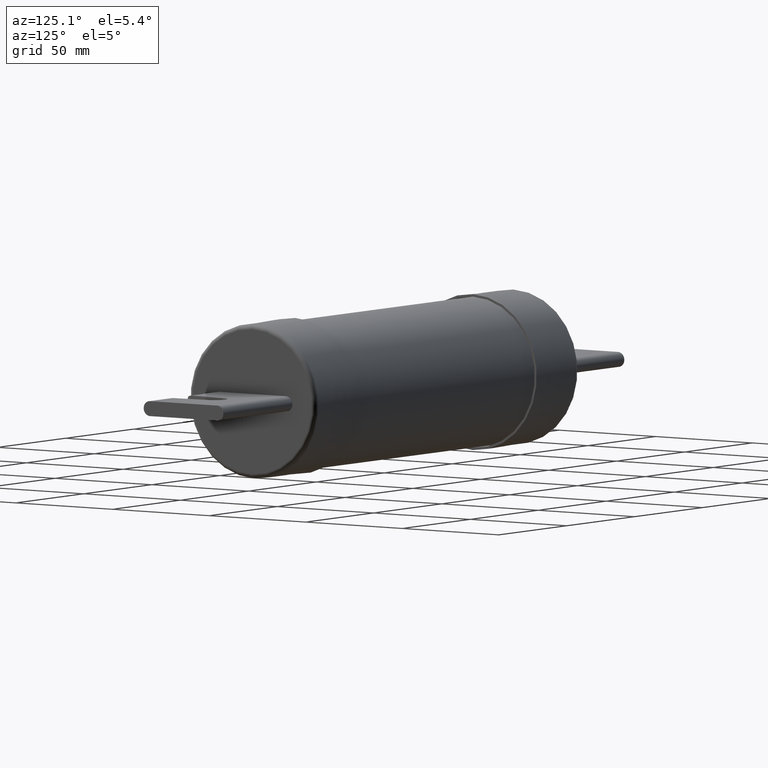
[diagram: clean part render]
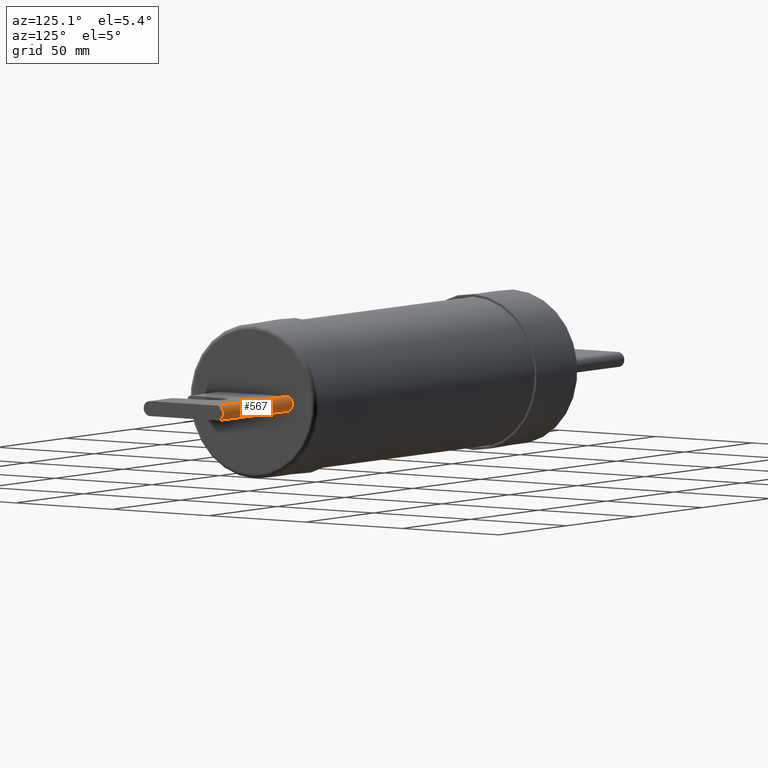
[diagram: same view with one face highlighted and labeled with its STEP entity id]
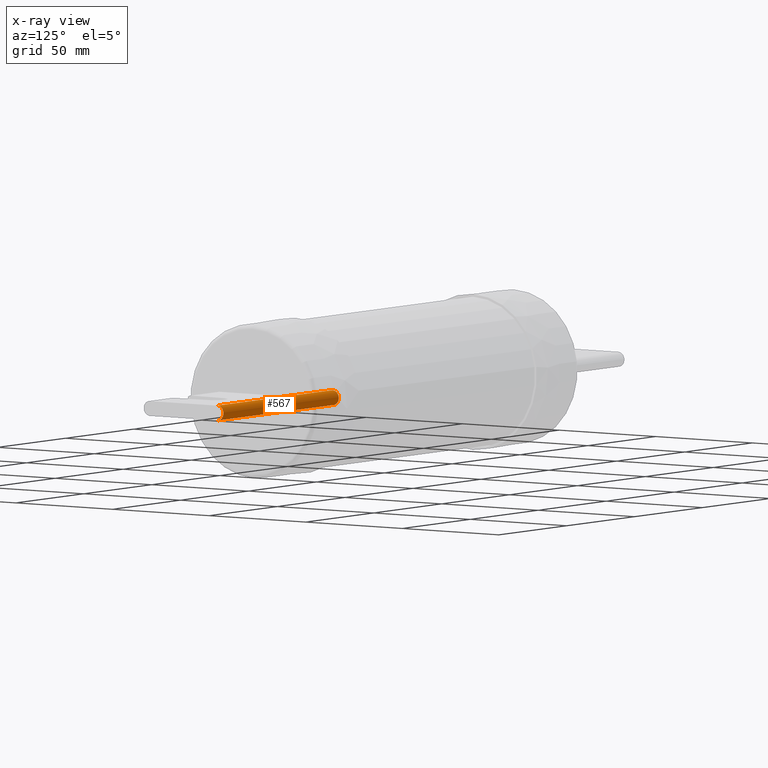
[diagram: x-ray of the same camera — body ghosted, the highlighted face saturated]
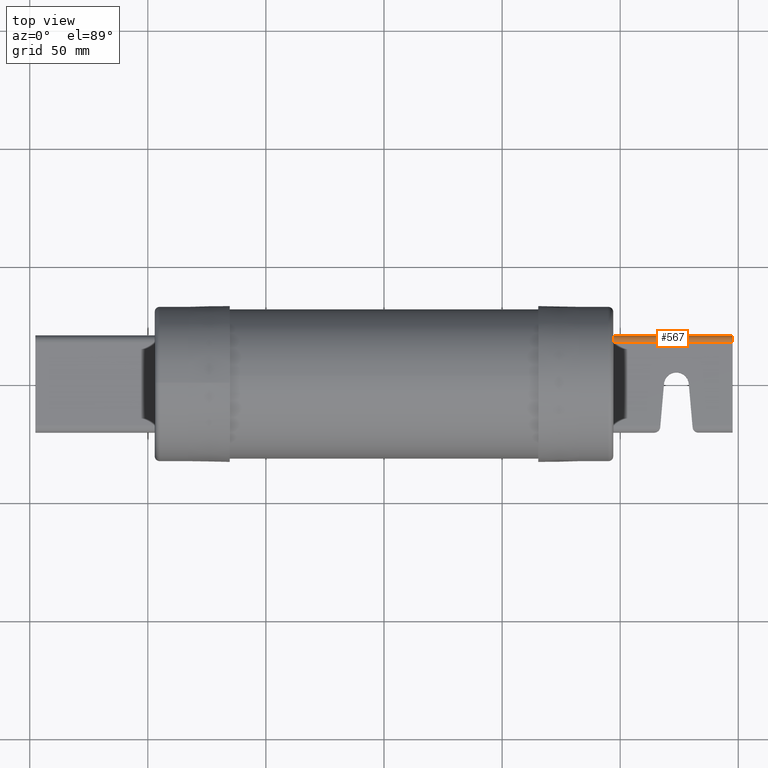
[diagram: same view with one face highlighted and labeled with its STEP entity id]
A machine part, auxiliary view. The second image highlights one B-rep face of the part: STEP entity #567.
The next image is the same camera in x-ray: the body ghosted, the highlighted face saturated — about 0% of this face is hidden behind the body in this view.
A second angle (top view) of the same face is appended — the face is thin or edge-on in the first view.
In plain terms, the highlighted cylindrical surface (edge-blend (fillet) strip) has radius 3.175 mm, axis along (1, 0.0002, -0).
Its self-contained STEP definition (entity closure, byte-faithful):
#104 = DIRECTION ( 'NONE',  ( -0.0001632919660380538900, 0.9999999866678668200, 1.201107293654489000E-016 ) ) ;
#159 = EDGE_CURVE ( 'NONE', #493, #902, #983, .T. ) ;
#197 = CARTESIAN_POINT ( 'NONE',  ( 2.467887663046654600, 0.6879029953996683700, -0.1250000000000002800 ) ) ;
#363 = CARTESIAN_POINT ( 'NONE',  ( 4.139887640755327800, 0.6881760195668792400, 0.1249999999999996800 ) ) ;
#426 = CARTESIAN_POINT ( 'NONE',  ( 5.811887618464001400, 0.6884490437340899900, -0.1250000000000003600 ) ) ;
#462 = DIRECTION ( 'NONE',  ( 0.9999999866678668200, 0.0001632919660351004400, -2.389582637029530700E-017 ) ) ;
#493 = VERTEX_POINT ( 'NONE', #2766 ) ;
#567 = ADVANCED_FACE ( 'NONE', ( #1205 ), #4195, .T. ) ;
#642 = EDGE_CURVE ( 'NONE', #902, #1938, #832, .T. ) ;
#718 = DIRECTION ( 'NONE',  ( -0.9999999866678668200, -0.0001632919660351868500, 2.389582637029529500E-017 ) ) ;
#769 = ORIENTED_EDGE ( 'NONE', *, *, #159, .F. ) ;
#802 = CIRCLE ( 'NONE', #1664, 0.1249999999999999300 ) ;
#832 = CIRCLE ( 'NONE', #1279, 0.1250000000000000000 ) ;
#891 = AXIS2_PLACEMENT_3D ( 'NONE', #3108, #2478, #1521 ) ;
#902 = VERTEX_POINT ( 'NONE', #991 ) ;
#983 = LINE ( 'NONE', #363, #3272 ) ;
#991 = CARTESIAN_POINT ( 'NONE',  ( 2.467887663046654600, 0.6879029953996683700, 0.1249999999999997100 ) ) ;
#1123 = VECTOR ( 'NONE', #2915, 39.37007874015748100 ) ;
#1205 = FACE_OUTER_BOUND ( 'NONE', #4346, .T. ) ;
#1279 = AXIS2_PLACEMENT_3D ( 'NONE', #3098, #2351, #2011 ) ;
#1352 = EDGE_CURVE ( 'NONE', #1938, #3511, #3026, .T. ) ;
#1456 = ORIENTED_EDGE ( 'NONE', *, *, #3372, .F. ) ;
#1521 = DIRECTION ( 'NONE',  ( 0.0001632919660336828500, -0.9999999866678668200, -1.201107293654488300E-016 ) ) ;
#1527 = CARTESIAN_POINT ( 'NONE',  ( 2.467887663046654600, 0.6879029953996683700, -0.1250000000000002800 ) ) ;
#1664 = AXIS2_PLACEMENT_3D ( 'NONE', #2531, #462, #104 ) ;
#1669 = ORIENTED_EDGE ( 'NONE', *, *, #642, .F. ) ;
#1938 = VERTEX_POINT ( 'NONE', #197 ) ;
#2011 = DIRECTION ( 'NONE',  ( 0.0001632919660336828500, -0.9999999866678668200, -1.201107293654488300E-016 ) ) ;
#2351 = DIRECTION ( 'NONE',  ( -0.9999999866678668200, -0.0001632919660352685500, 2.389582637029528600E-017 ) ) ;
#2478 = DIRECTION ( 'NONE',  ( 0.9999999866678668200, 0.0001632919660351868500, -2.389582637029529500E-017 ) ) ;
#2531 = CARTESIAN_POINT ( 'NONE',  ( 5.811887618464000500, 0.6884490437340901000, -3.649393555616795500E-016 ) ) ;
#2766 = CARTESIAN_POINT ( 'NONE',  ( 5.811887618464001400, 0.6884490437340899900, 0.1249999999999996400 ) ) ;
#2915 = DIRECTION ( 'NONE',  ( 0.9999999866678668200, 0.0001632919660351868500, -2.389582637029529500E-017 ) ) ;
#3026 = LINE ( 'NONE', #1527, #1123 ) ;
#3048 = ORIENTED_EDGE ( 'NONE', *, *, #1352, .F. ) ;
#3098 = CARTESIAN_POINT ( 'NONE',  ( 2.467887663046654600, 0.6879029953996683700, -2.850317121794120600E-016 ) ) ;
#3108 = CARTESIAN_POINT ( 'NONE',  ( 2.467887663046654600, 0.6879029953996683700, -2.850317121794120600E-016 ) ) ;
#3272 = VECTOR ( 'NONE', #718, 39.37007874015748100 ) ;
#3372 = EDGE_CURVE ( 'NONE', #3511, #493, #802, .T. ) ;
#3511 = VERTEX_POINT ( 'NONE', #426 ) ;
#4195 = CYLINDRICAL_SURFACE ( 'NONE', #891, 0.1250000000000000000 ) ;
#4346 = EDGE_LOOP ( 'NONE', ( #3048, #1669, #769, #1456 ) ) ;